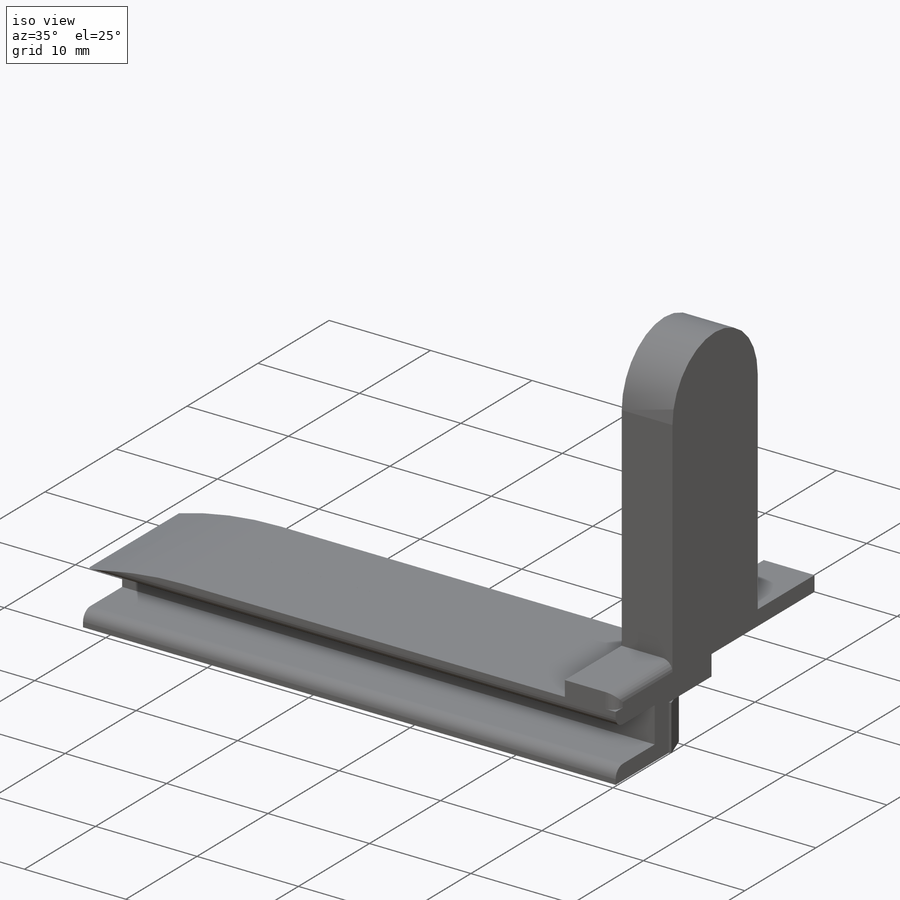
[diagram: iso view]
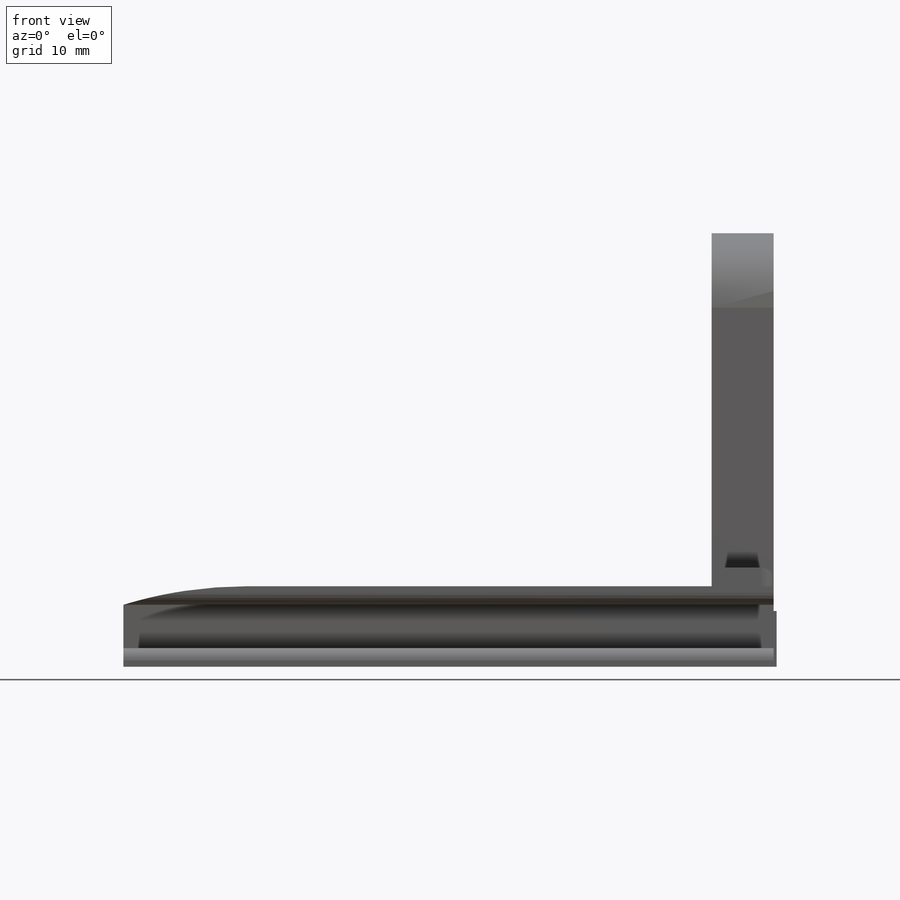
[diagram: front view]
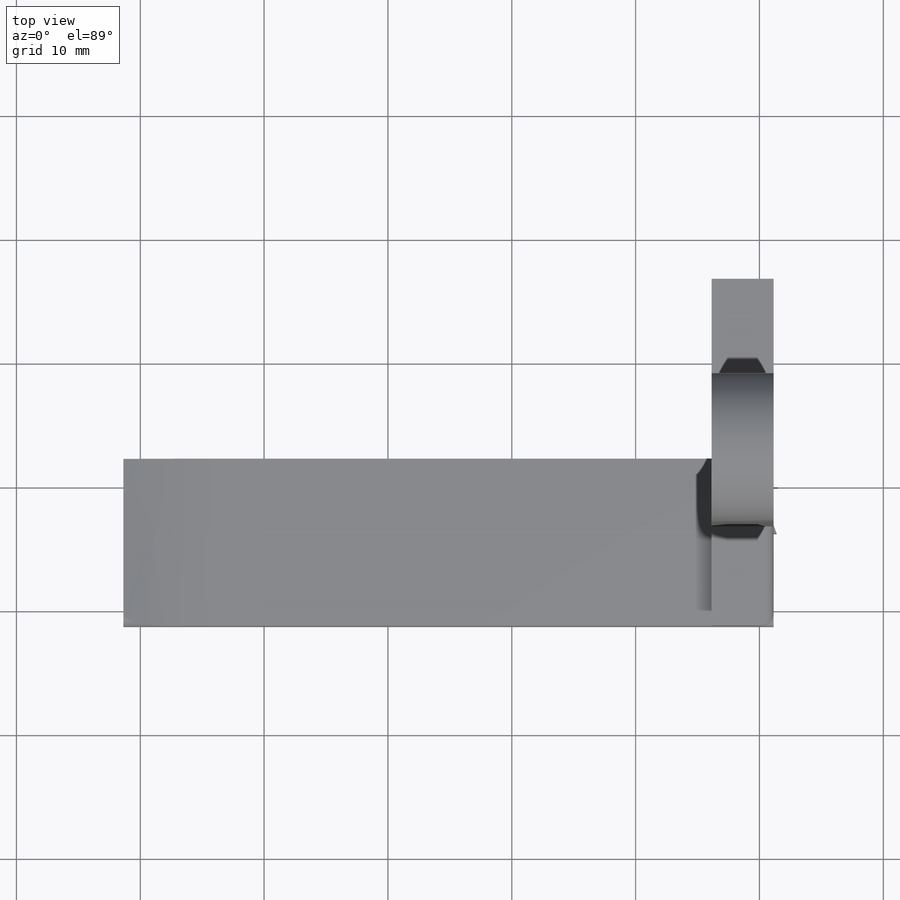
[diagram: top view]
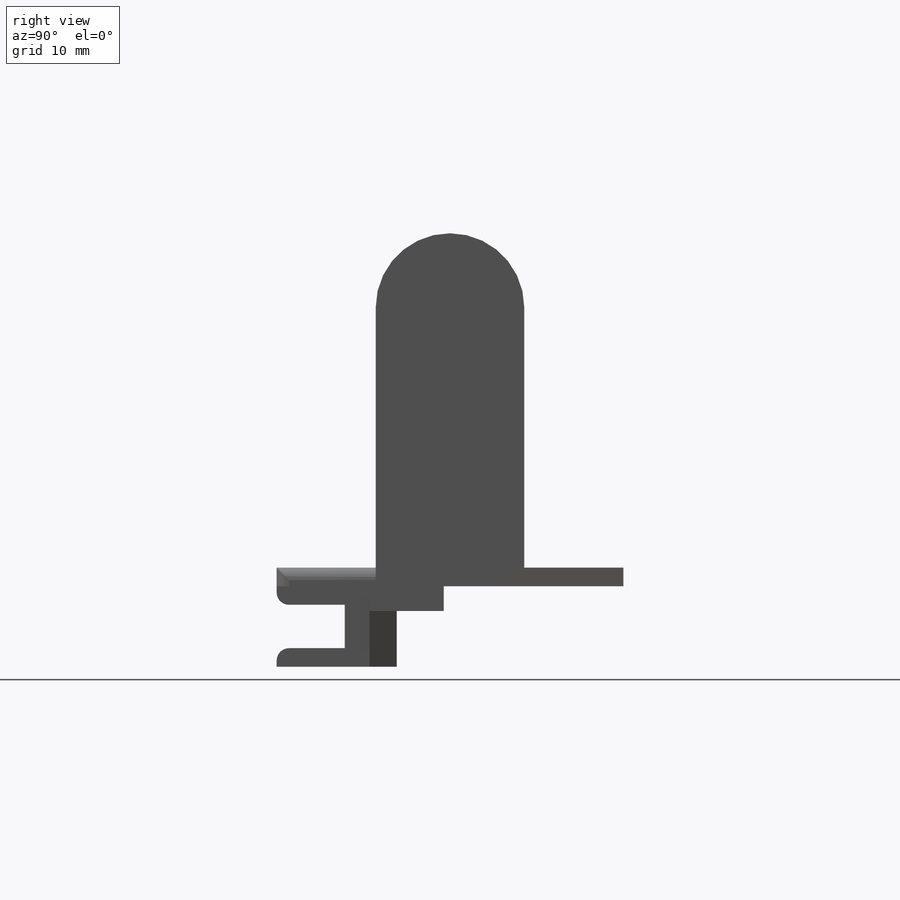
[diagram: right view]
SOLIDWORKS PART (.sldprt)
format: sldprt  version: not decoded by parser v0  size: 467,456 bytes
history: native  units: mm
features: sketch x7, extrude x5, cut_extrude x2, fillet x2, material x1 (+12 scaffold rows collapsed)
feature tree (29):
  scaffold x12  (default folders/planes/origin — collapsed)
  material  "ABS"
  sketch  "Sketch1"  dims[D1=65.0mm D2=2.0mm]
  extrude  "Boss-Extrude1"  Depth=6.5mm
  sketch  "Sketch2"  dims[c1.D1=2.44mm c1.D2=3.0mm c1.D3=0.84mm c1.D5=0.7mm c2.D2=2.2mm c2.D4=23.0]
  extrude  "Boss-Extrude2"  Depth=4.5mm
  sketch  "Sketch5"  dims[D1=1.5mm D2=2.5mm]
  extrude  "Boss-Extrude6"  Depth=5.5mm
  sketch  "Sketch6"  dims[D1=12.0mm D2=27.0mm D3=1.5mm D4=28.0mm]
  extrude  "Boss-Extrude7"  Depth=5mm
  sketch  "Sketch7"  dims[D1=2.0mm]
  extrude  "Boss-Extrude8"  Depth=6mm
  sketch  "Sketch8"
  cut_extrude  "Cut-Extrude1"  [1 undecoded]
  sketch  "Sketch10"  dims[D1=10.0mm]
  cut_extrude  "Cut-Extrude2"  [1 undecoded]
  fillet  "Fillet5"  Radius=1mm
  fillet  "Fillet7"  Radius=1mm
decode coverage: 13 of 16 modeling features carry decoded parameters
note: 2 parameter values undecoded
note: suppression state not decoded; provenance and decode notes live in map.json
